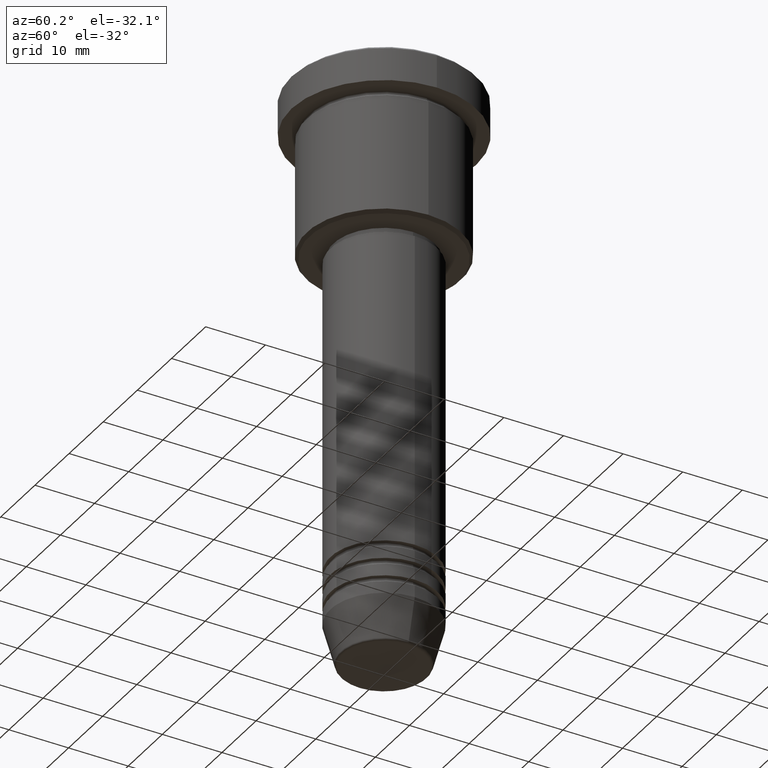
[diagram: clean part render]
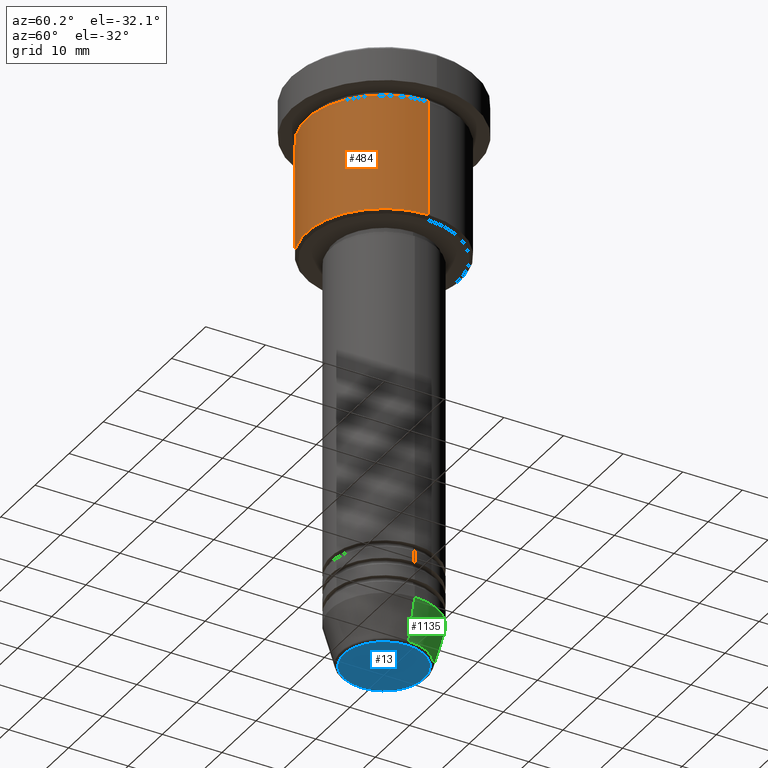
[diagram: same view with three faces highlighted in distinct colors, each labeled with its STEP entity id]
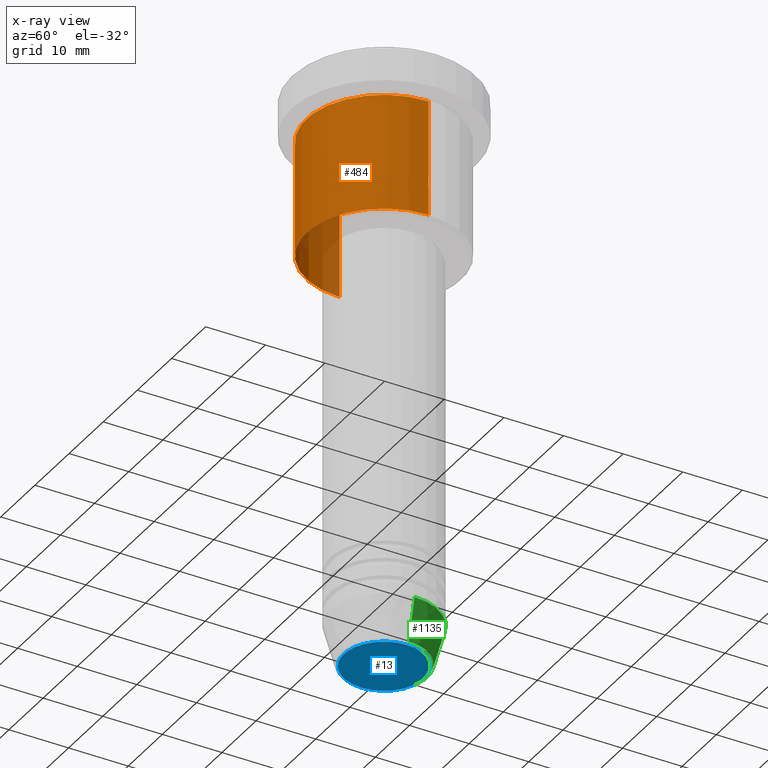
[diagram: x-ray of the same camera — body ghosted, the three highlighted faces saturated]
A machine part, auxiliary view with three faces highlighted in distinct colors.
The next image is the same camera in x-ray (body ghosted, the three faces saturated) — at least one of them is partly hidden behind the body in this view.
Their STEP definitions:

[orange] entity #484 — the highlighted cylindrical surface (partial cylindrical patch) has radius 13 mm, axis along (-0, -0, 1).
#29 = EDGE_CURVE ( 'NONE', #272, #795, #1177, .T. ) ;
#100 = CARTESIAN_POINT ( 'NONE',  ( 0.000000000000000000, 0.000000000000000000, -6.999999999999995559 ) ) ;
#101 = CARTESIAN_POINT ( 'NONE',  ( 13.00000000000000000, 0.000000000000000000, -6.999999999999995559 ) ) ;
#109 = CARTESIAN_POINT ( 'NONE',  ( -13.00000000000000000, 1.592040838891559095E-15, -26.49999999999997513 ) ) ;
#127 = VERTEX_POINT ( 'NONE', #355 ) ;
#159 = VERTEX_POINT ( 'NONE', #109 ) ;
#174 = DIRECTION ( 'NONE',  ( 1.000000000000000000, 0.000000000000000000, 0.000000000000000000 ) ) ;
#272 = VERTEX_POINT ( 'NONE', #390 ) ;
#281 = VECTOR ( 'NONE', #770, 1000.000000000000000 ) ;
#309 = DIRECTION ( 'NONE',  ( -0.000000000000000000, -0.000000000000000000, 1.000000000000000000 ) ) ;
#312 = LINE ( 'NONE', #767, #281 ) ;
#354 = CARTESIAN_POINT ( 'NONE',  ( 0.000000000000000000, 0.000000000000000000, 0.000000000000000000 ) ) ;
#355 = CARTESIAN_POINT ( 'NONE',  ( 13.00000000000000000, 0.000000000000000000, -26.49999999999997513 ) ) ;
#390 = CARTESIAN_POINT ( 'NONE',  ( -13.00000000000000000, 1.592040838891559095E-15, -6.999999999999995559 ) ) ;
#393 = LINE ( 'NONE', #1022, #911 ) ;
#434 = CIRCLE ( 'NONE', #1106, 13.00000000000000000 ) ;
#455 = ORIENTED_EDGE ( 'NONE', *, *, #1018, .F. ) ;
#484 = ADVANCED_FACE ( 'NONE', ( #900 ), #877, .T. ) ;
#527 = ORIENTED_EDGE ( 'NONE', *, *, #29, .F. ) ;
#557 = DIRECTION ( 'NONE',  ( 1.000000000000000000, 0.000000000000000000, 0.000000000000000000 ) ) ;
#640 = AXIS2_PLACEMENT_3D ( 'NONE', #100, #908, #557 ) ;
#675 = DIRECTION ( 'NONE',  ( -1.000000000000000000, 0.000000000000000000, 0.000000000000000000 ) ) ;
#748 = DIRECTION ( 'NONE',  ( -0.000000000000000000, -0.000000000000000000, 1.000000000000000000 ) ) ;
#759 = AXIS2_PLACEMENT_3D ( 'NONE', #354, #885, #174 ) ;
#767 = CARTESIAN_POINT ( 'NONE',  ( -13.00000000000000000, 1.592040838891559095E-15, 0.000000000000000000 ) ) ;
#770 = DIRECTION ( 'NONE',  ( -0.000000000000000000, -0.000000000000000000, 1.000000000000000000 ) ) ;
#795 = VERTEX_POINT ( 'NONE', #101 ) ;
#870 = EDGE_LOOP ( 'NONE', ( #455, #1013, #961, #527 ) ) ;
#877 = CYLINDRICAL_SURFACE ( 'NONE', #759, 13.00000000000000000 ) ;
#885 = DIRECTION ( 'NONE',  ( -0.000000000000000000, -0.000000000000000000, 1.000000000000000000 ) ) ;
#900 = FACE_OUTER_BOUND ( 'NONE', #870, .T. ) ;
#908 = DIRECTION ( 'NONE',  ( -0.000000000000000000, -0.000000000000000000, 1.000000000000000000 ) ) ;
#911 = VECTOR ( 'NONE', #748, 1000.000000000000000 ) ;
#932 = EDGE_CURVE ( 'NONE', #127, #795, #393, .T. ) ;
#950 = CARTESIAN_POINT ( 'NONE',  ( 0.000000000000000000, 0.000000000000000000, -26.49999999999997513 ) ) ;
#961 = ORIENTED_EDGE ( 'NONE', *, *, #932, .T. ) ;
#1013 = ORIENTED_EDGE ( 'NONE', *, *, #1043, .T. ) ;
#1018 = EDGE_CURVE ( 'NONE', #159, #272, #312, .T. ) ;
#1022 = CARTESIAN_POINT ( 'NONE',  ( 13.00000000000000000, 0.000000000000000000, 0.000000000000000000 ) ) ;
#1043 = EDGE_CURVE ( 'NONE', #159, #127, #434, .T. ) ;
#1106 = AXIS2_PLACEMENT_3D ( 'NONE', #950, #309, #675 ) ;
#1177 = CIRCLE ( 'NONE', #640, 13.00000000000000000 ) ;

[blue] entity #13 — the highlighted planar face has unit normal (0, -0, 1).
#13 = ADVANCED_FACE ( 'NONE', ( #974 ), #249, .F. ) ;
#17 = CIRCLE ( 'NONE', #191, 6.740692158992653837 ) ;
#156 = VERTEX_POINT ( 'NONE', #292 ) ;
#161 = DIRECTION ( 'NONE',  ( 0.000000000000000000, -0.000000000000000000, 1.000000000000000000 ) ) ;
#191 = AXIS2_PLACEMENT_3D ( 'NONE', #828, #745, #1111 ) ;
#229 = ORIENTED_EDGE ( 'NONE', *, *, #686, .T. ) ;
#249 = PLANE ( 'NONE',  #1003 ) ;
#292 = CARTESIAN_POINT ( 'NONE',  ( -6.740692158992653837, 8.550696569392682723E-16, -97.00000000000000000 ) ) ;
#293 = EDGE_CURVE ( 'NONE', #583, #156, #17, .T. ) ;
#349 = AXIS2_PLACEMENT_3D ( 'NONE', #519, #426, #405 ) ;
#405 = DIRECTION ( 'NONE',  ( 1.000000000000000000, 0.000000000000000000, 0.000000000000000000 ) ) ;
#412 = ORIENTED_EDGE ( 'NONE', *, *, #293, .T. ) ;
#426 = DIRECTION ( 'NONE',  ( 0.000000000000000000, 0.000000000000000000, -1.000000000000000000 ) ) ;
#519 = CARTESIAN_POINT ( 'NONE',  ( 0.000000000000000000, 0.000000000000000000, -97.00000000000000000 ) ) ;
#583 = VERTEX_POINT ( 'NONE', #914 ) ;
#597 = EDGE_LOOP ( 'NONE', ( #412, #229 ) ) ;
#686 = EDGE_CURVE ( 'NONE', #156, #583, #1081, .T. ) ;
#745 = DIRECTION ( 'NONE',  ( 0.000000000000000000, 0.000000000000000000, -1.000000000000000000 ) ) ;
#794 = CARTESIAN_POINT ( 'NONE',  ( 0.000000000000000000, 0.000000000000000000, -97.00000000000000000 ) ) ;
#828 = CARTESIAN_POINT ( 'NONE',  ( 0.000000000000000000, 0.000000000000000000, -97.00000000000000000 ) ) ;
#878 = DIRECTION ( 'NONE',  ( 1.000000000000000000, 0.000000000000000000, 0.000000000000000000 ) ) ;
#914 = CARTESIAN_POINT ( 'NONE',  ( 6.740692158992653837, 0.000000000000000000, -97.00000000000000000 ) ) ;
#974 = FACE_OUTER_BOUND ( 'NONE', #597, .T. ) ;
#1003 = AXIS2_PLACEMENT_3D ( 'NONE', #794, #161, #878 ) ;
#1081 = CIRCLE ( 'NONE', #349, 6.740692158992653837 ) ;
#1111 = DIRECTION ( 'NONE',  ( 1.000000000000000000, 0.000000000000000000, 0.000000000000000000 ) ) ;

[green] entity #1135 — the highlighted conical surface has half-angle 15 deg.
#2 = EDGE_CURVE ( 'NONE', #860, #725, #1079, .T. ) ;
#35 = AXIS2_PLACEMENT_3D ( 'NONE', #873, #185, #438 ) ;
#86 = EDGE_CURVE ( 'NONE', #503, #860, #182, .T. ) ;
#99 = AXIS2_PLACEMENT_3D ( 'NONE', #1061, #331, #879 ) ;
#150 = DIRECTION ( 'NONE',  ( 1.000000000000000000, 0.000000000000000000, 0.000000000000000000 ) ) ;
#153 = LINE ( 'NONE', #869, #969 ) ;
#182 = LINE ( 'NONE', #344, #212 ) ;
#185 = DIRECTION ( 'NONE',  ( -0.000000000000000000, -0.000000000000000000, 1.000000000000000000 ) ) ;
#212 = VECTOR ( 'NONE', #269, 1000.000000000000000 ) ;
#269 = DIRECTION ( 'NONE',  ( 0.2588190451025213501, 0.000000000000000000, 0.9659258262890680902 ) ) ;
#306 = EDGE_CURVE ( 'NONE', #503, #1173, #551, .T. ) ;
#331 = DIRECTION ( 'NONE',  ( -0.000000000000000000, -0.000000000000000000, 1.000000000000000000 ) ) ;
#344 = CARTESIAN_POINT ( 'NONE',  ( 9.000000000000000000, 0.000000000000000000, -90.00000000000000000 ) ) ;
#384 = CARTESIAN_POINT ( 'NONE',  ( -9.000000000000000000, 1.102182119232617714E-15, -90.00000000000000000 ) ) ;
#422 = DIRECTION ( 'NONE',  ( -0.2588190451025213501, 3.169619151431772337E-17, 0.9659258262890680902 ) ) ;
#438 = DIRECTION ( 'NONE',  ( 1.000000000000000000, 0.000000000000000000, 0.000000000000000000 ) ) ;
#441 = FACE_OUTER_BOUND ( 'NONE', #588, .T. ) ;
#503 = VERTEX_POINT ( 'NONE', #542 ) ;
#542 = CARTESIAN_POINT ( 'NONE',  ( 7.223655072137188604, 0.000000000000000000, -96.62940952255127058 ) ) ;
#551 = CIRCLE ( 'NONE', #35, 7.223655072137188604 ) ;
#556 = CONICAL_SURFACE ( 'NONE', #99, 9.000000000000000000, 0.2617993877991500740 ) ;
#588 = EDGE_LOOP ( 'NONE', ( #729, #799, #856, #715 ) ) ;
#682 = CARTESIAN_POINT ( 'NONE',  ( 0.000000000000000000, 0.000000000000000000, -90.00000000000000000 ) ) ;
#699 = CARTESIAN_POINT ( 'NONE',  ( -7.223655072137189492, 9.934123627281765110E-16, -96.62940952255127058 ) ) ;
#715 = ORIENTED_EDGE ( 'NONE', *, *, #86, .F. ) ;
#725 = VERTEX_POINT ( 'NONE', #384 ) ;
#729 = ORIENTED_EDGE ( 'NONE', *, *, #306, .T. ) ;
#799 = ORIENTED_EDGE ( 'NONE', *, *, #1118, .T. ) ;
#831 = CARTESIAN_POINT ( 'NONE',  ( 9.000000000000000000, 0.000000000000000000, -90.00000000000000000 ) ) ;
#856 = ORIENTED_EDGE ( 'NONE', *, *, #2, .F. ) ;
#860 = VERTEX_POINT ( 'NONE', #831 ) ;
#869 = CARTESIAN_POINT ( 'NONE',  ( -9.000000000000000000, 1.102182119232617714E-15, -90.00000000000000000 ) ) ;
#873 = CARTESIAN_POINT ( 'NONE',  ( 0.000000000000000000, 0.000000000000000000, -96.62940952255127058 ) ) ;
#879 = DIRECTION ( 'NONE',  ( 1.000000000000000000, 0.000000000000000000, 0.000000000000000000 ) ) ;
#963 = DIRECTION ( 'NONE',  ( -0.000000000000000000, -0.000000000000000000, 1.000000000000000000 ) ) ;
#969 = VECTOR ( 'NONE', #422, 1000.000000000000000 ) ;
#1061 = CARTESIAN_POINT ( 'NONE',  ( 0.000000000000000000, 0.000000000000000000, -90.00000000000000000 ) ) ;
#1062 = AXIS2_PLACEMENT_3D ( 'NONE', #682, #963, #150 ) ;
#1079 = CIRCLE ( 'NONE', #1062, 9.000000000000000000 ) ;
#1118 = EDGE_CURVE ( 'NONE', #1173, #725, #153, .T. ) ;
#1135 = ADVANCED_FACE ( 'NONE', ( #441 ), #556, .T. ) ;
#1173 = VERTEX_POINT ( 'NONE', #699 ) ;